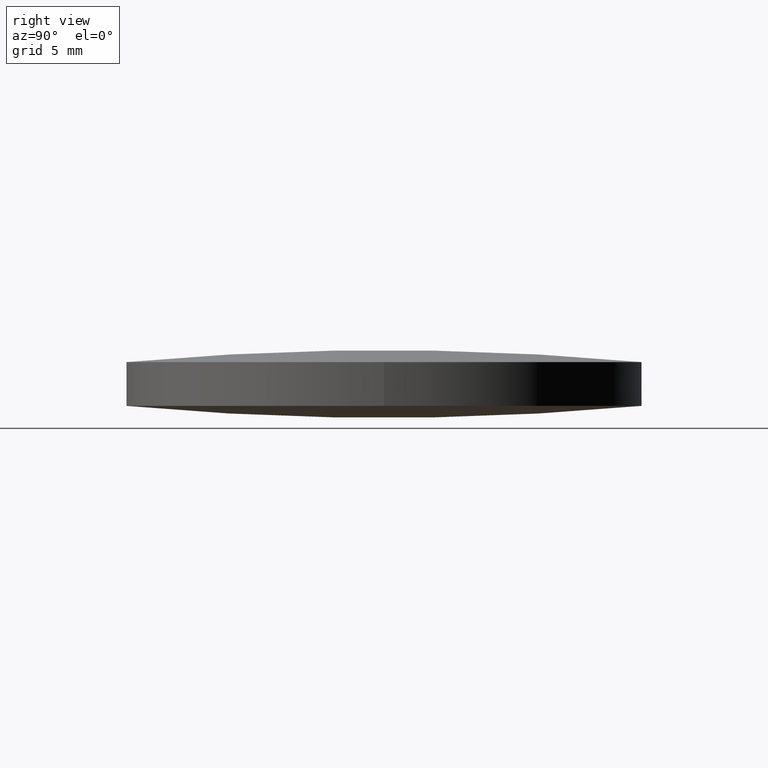
[diagram: clean part render]
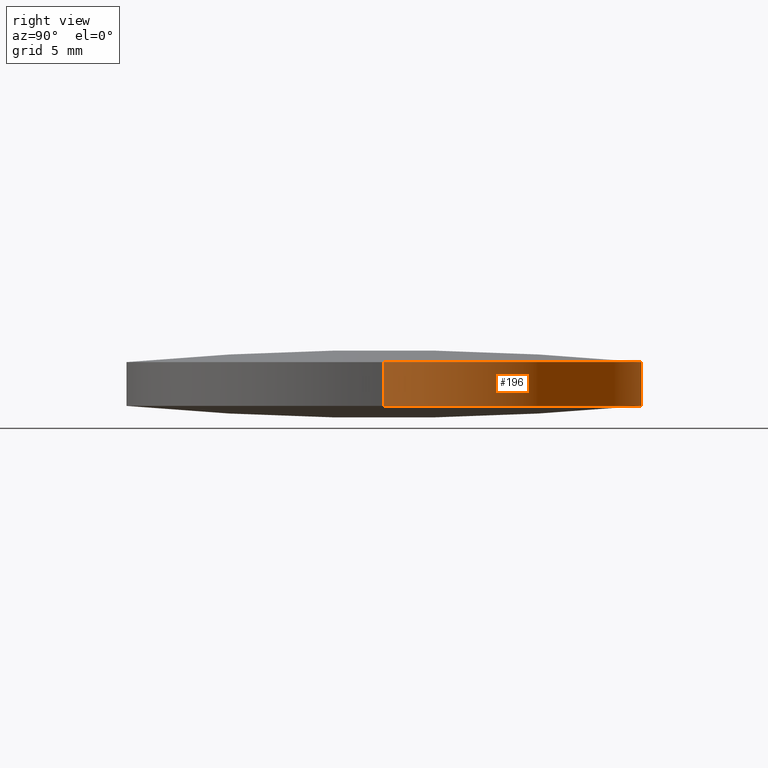
[diagram: same view with one face highlighted and labeled with its STEP entity id]
A machine part, right view. The second image highlights one B-rep face of the part: STEP entity #196.
In plain terms, the highlighted cylindrical surface (partial cylindrical patch) has radius 19.05 mm, axis along (0, 0, 1).
Its self-contained STEP definition (entity closure, byte-faithful):
#3 = EDGE_CURVE ( 'NONE', #249, #177, #100, .T. ) ;
#16 = VERTEX_POINT ( 'NONE', #148 ) ;
#17 = EDGE_CURVE ( 'NONE', #219, #133, #161, .T. ) ;
#20 = FACE_OUTER_BOUND ( 'NONE', #46, .T. ) ;
#21 = DIRECTION ( 'NONE',  ( 5.827942386483759700E-018, 2.717192996813919900E-034, 1.000000000000000000 ) ) ;
#31 = DIRECTION ( 'NONE',  ( 1.000000000000000000, -8.881784197001252300E-016, -5.691349986800548400E-018 ) ) ;
#38 = CARTESIAN_POINT ( 'NONE',  ( 1.884043759237314700E-013, 19.04999999999994700, 0.8801480167750022100 ) ) ;
#46 = EDGE_LOOP ( 'NONE', ( #80, #182, #271, #152, #262, #143 ) ) ;
#60 = DIRECTION ( 'NONE',  ( -5.827942386483759700E-018, -2.717192996813919900E-034, -1.000000000000000000 ) ) ;
#74 = CARTESIAN_POINT ( 'NONE',  ( -19.05000000000000400, 1.444773732675583000E-015, 0.8801480167750090900 ) ) ;
#80 = ORIENTED_EDGE ( 'NONE', *, *, #91, .F. ) ;
#81 = EDGE_CURVE ( 'NONE', #16, #219, #235, .T. ) ;
#84 = VECTOR ( 'NONE', #264, 1000.000000000000000 ) ;
#86 = CARTESIAN_POINT ( 'NONE',  ( -4.644055895359926400E-015, -8.881784197001250400E-016, 4.119851983224990000 ) ) ;
#91 = EDGE_CURVE ( 'NONE', #103, #249, #289, .T. ) ;
#94 = VECTOR ( 'NONE', #115, 1000.000000000000000 ) ;
#100 = CIRCLE ( 'NONE', #109, 19.05000000000000100 ) ;
#101 = DIRECTION ( 'NONE',  ( 1.000000000000000000, 0.0000000000000000000, 0.0000000000000000000 ) ) ;
#103 = VERTEX_POINT ( 'NONE', #106 ) ;
#106 = CARTESIAN_POINT ( 'NONE',  ( -19.05000000000000400, 1.444773732675583000E-015, 0.8801480167750092000 ) ) ;
#109 = AXIS2_PLACEMENT_3D ( 'NONE', #202, #276, #31 ) ;
#115 = DIRECTION ( 'NONE',  ( 5.827942386483759700E-018, 2.717192996813919900E-034, 1.000000000000000000 ) ) ;
#119 = CARTESIAN_POINT ( 'NONE',  ( -1.884043759237312400E-013, 19.05000000000004000, 4.119851983224985600 ) ) ;
#133 = VERTEX_POINT ( 'NONE', #275 ) ;
#136 = CARTESIAN_POINT ( 'NONE',  ( 19.04999999999999700, -8.881784197001250400E-016, 0.8801480167750088700 ) ) ;
#139 = EDGE_CURVE ( 'NONE', #177, #133, #141, .T. ) ;
#140 = DIRECTION ( 'NONE',  ( 1.000000000000000000, 0.0000000000000000000, -5.691349986800548400E-018 ) ) ;
#141 = LINE ( 'NONE', #136, #94 ) ;
#143 = ORIENTED_EDGE ( 'NONE', *, *, #3, .F. ) ;
#148 = CARTESIAN_POINT ( 'NONE',  ( -19.05000000000000400, 1.444773732675583000E-015, 4.119851983224990000 ) ) ;
#152 = ORIENTED_EDGE ( 'NONE', *, *, #17, .T. ) ;
#156 = AXIS2_PLACEMENT_3D ( 'NONE', #248, #60, #101 ) ;
#161 = CIRCLE ( 'NONE', #156, 19.05000000000000100 ) ;
#167 = DIRECTION ( 'NONE',  ( 1.000000000000000000, 0.0000000000000000000, -5.691349986800548400E-018 ) ) ;
#170 = EDGE_CURVE ( 'NONE', #103, #16, #279, .T. ) ;
#175 = CYLINDRICAL_SURFACE ( 'NONE', #239, 19.05000000000000100 ) ;
#177 = VERTEX_POINT ( 'NONE', #266 ) ;
#182 = ORIENTED_EDGE ( 'NONE', *, *, #170, .T. ) ;
#196 = ADVANCED_FACE ( 'NONE', ( #20 ), #175, .T. ) ;
#202 = CARTESIAN_POINT ( 'NONE',  ( -4.662936703425659800E-015, -8.881784197001250400E-016, 0.8801480167750090900 ) ) ;
#219 = VERTEX_POINT ( 'NONE', #119 ) ;
#232 = AXIS2_PLACEMENT_3D ( 'NONE', #286, #290, #140 ) ;
#235 = CIRCLE ( 'NONE', #258, 19.05000000000000100 ) ;
#239 = AXIS2_PLACEMENT_3D ( 'NONE', #269, #21, #167 ) ;
#248 = CARTESIAN_POINT ( 'NONE',  ( -4.644055895359926400E-015, -8.881784197001250400E-016, 4.119851983224990000 ) ) ;
#249 = VERTEX_POINT ( 'NONE', #38 ) ;
#256 = DIRECTION ( 'NONE',  ( 1.000000000000000000, 0.0000000000000000000, 0.0000000000000000000 ) ) ;
#258 = AXIS2_PLACEMENT_3D ( 'NONE', #86, #282, #256 ) ;
#262 = ORIENTED_EDGE ( 'NONE', *, *, #139, .F. ) ;
#264 = DIRECTION ( 'NONE',  ( 5.827942386483759700E-018, 2.717192996813919900E-034, 1.000000000000000000 ) ) ;
#266 = CARTESIAN_POINT ( 'NONE',  ( 19.04999999999999700, -8.881784197001250400E-016, 0.8801480167750089800 ) ) ;
#269 = CARTESIAN_POINT ( 'NONE',  ( -4.662936703425659800E-015, -8.881784197001250400E-016, 0.8801480167750089800 ) ) ;
#271 = ORIENTED_EDGE ( 'NONE', *, *, #81, .T. ) ;
#275 = CARTESIAN_POINT ( 'NONE',  ( 19.04999999999999700, -8.881784197001250400E-016, 4.119851983224990000 ) ) ;
#276 = DIRECTION ( 'NONE',  ( -5.827942386483759700E-018, -2.717192996813919900E-034, -1.000000000000000000 ) ) ;
#279 = LINE ( 'NONE', #74, #84 ) ;
#282 = DIRECTION ( 'NONE',  ( -5.827942386483759700E-018, -2.717192996813919900E-034, -1.000000000000000000 ) ) ;
#286 = CARTESIAN_POINT ( 'NONE',  ( -4.662936703425659800E-015, -8.881784197001250400E-016, 0.8801480167750090900 ) ) ;
#289 = CIRCLE ( 'NONE', #232, 19.05000000000000100 ) ;
#290 = DIRECTION ( 'NONE',  ( -5.827942386483759700E-018, -2.717192996813919900E-034, -1.000000000000000000 ) ) ;